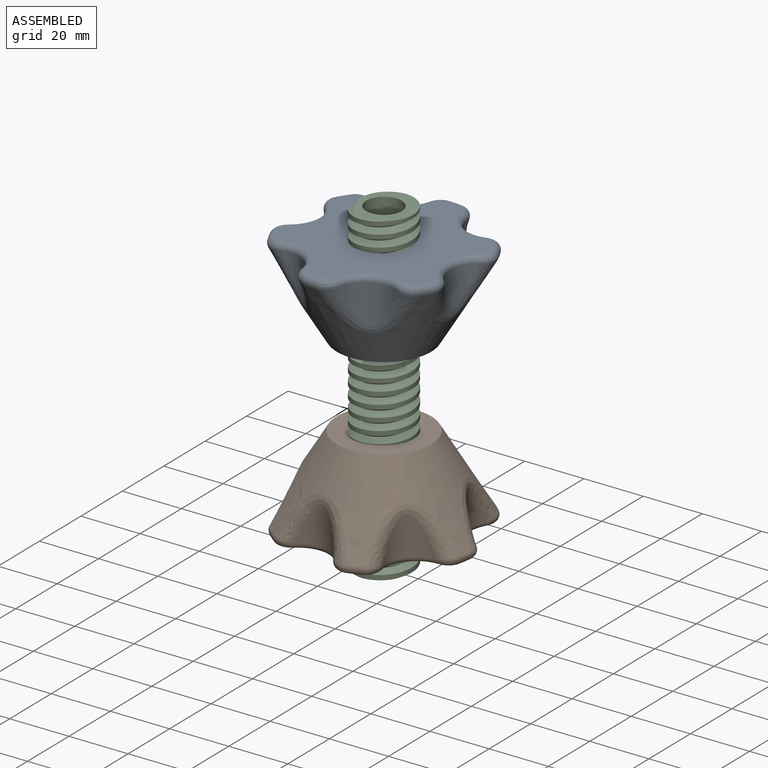
[diagram: assembled view]
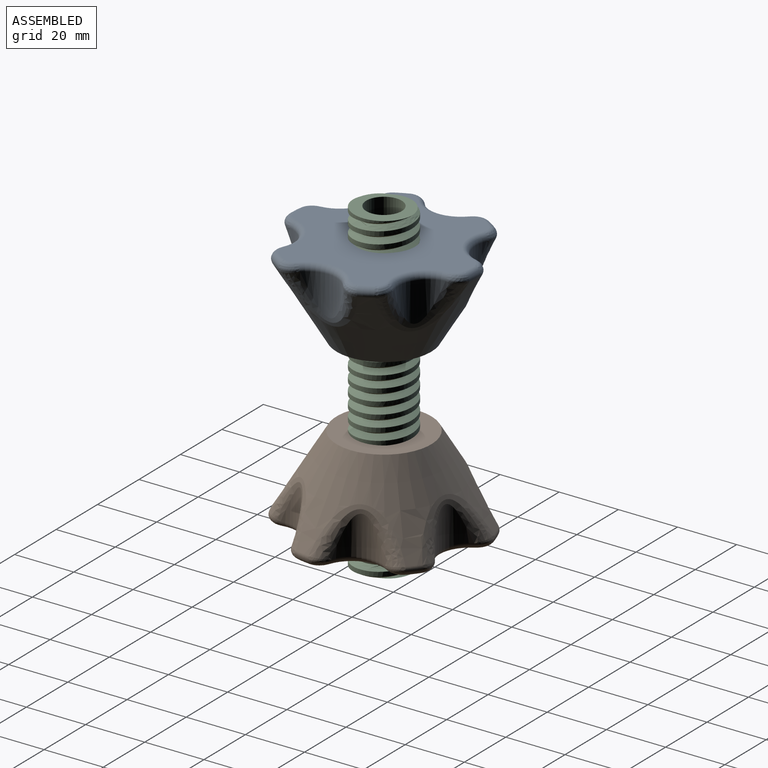
[diagram: assembled view, second angle]
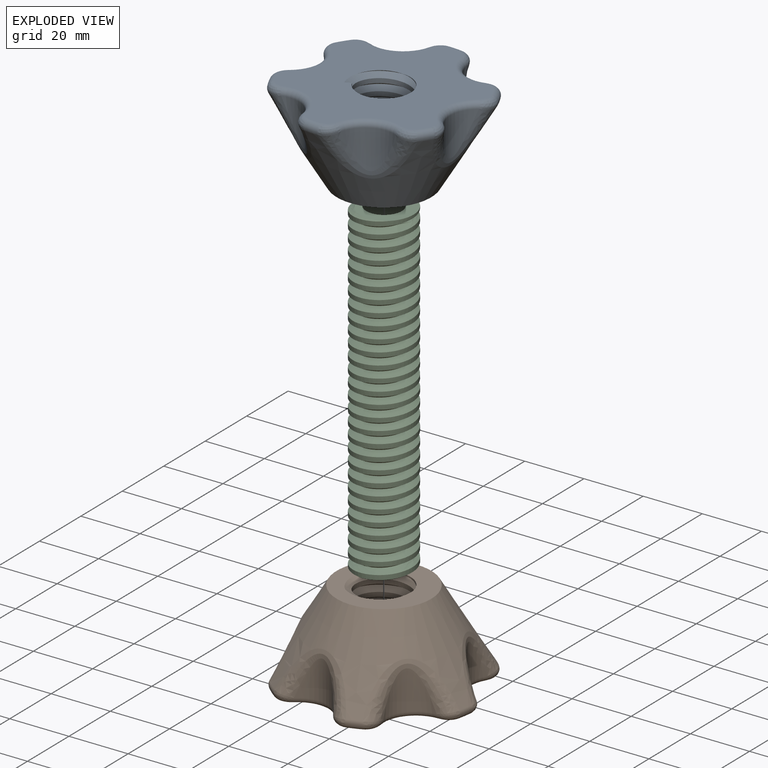
[diagram: exploded view]
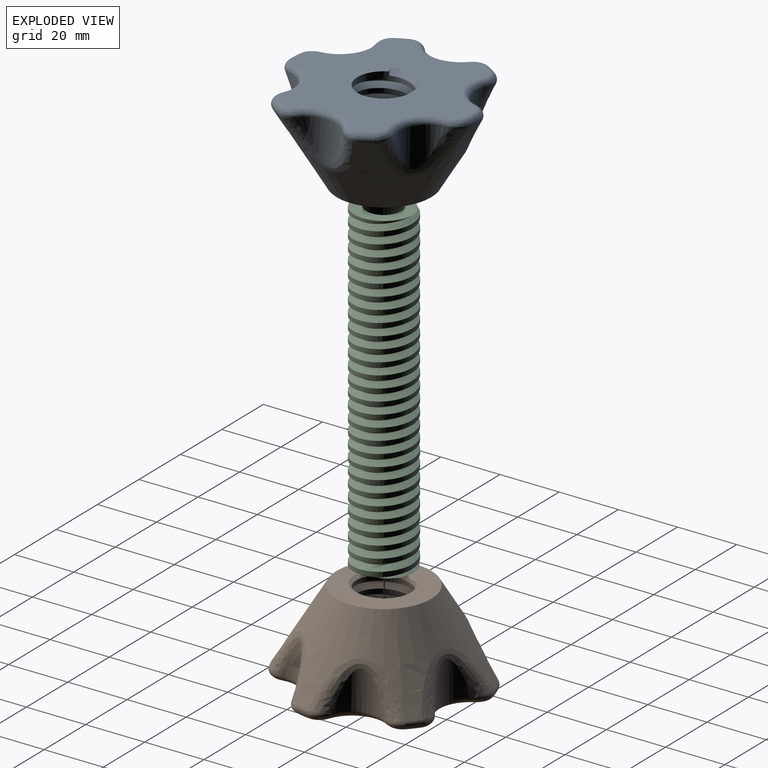
[diagram: exploded view, second angle]
ASSEMBLY  parts=3 mates=2
PART A: 43 faces, bbox 69x65.5x34.8 mm
  f0: cone r=34mm half-angle=31deg, axis (0,0,-1), area 2716.3mm2, adj f3,f13,f14,f15,f16,f17,f18,f22
  f1: plane 62.04x56.55mm, normal (0,0,-1), area 1858.3mm2, adj f2,f4,f6,f19,f20,f21,f22,f23
  f2: cylinder r=9mm len=30mm, axis (0,0,1), area 496.1mm2, adj f1,f3,f4,f5,f6
  f3: plane 33.1x33.1mm, normal (0,0,1), area 508.6mm2, adj f0,f2,f5,f6
  f4: plane 2.16x1.25mm, normal (0,1,0), area 1.3mm2, adj f1,f2,f5
  f5: bspline ~31.87x25.77mm, area 1168.9mm2, adj f2,f3,f4,f6
  f6: bspline ~33.2x25.77mm, area 1190.8mm2, adj f1,f2,f3,f5
  f7: cylinder r=10mm len=15.35mm, axis (0,0,-1), area 147.4mm2, adj f18,f35
  f8: cylinder r=10mm len=13.3mm, axis (0,0,-1), area 147.4mm2, adj f17,f27
  f9: cylinder r=10mm len=13.3mm, axis (0,0,-1), area 147.4mm2, adj f16,f19
  f10: cylinder r=10mm len=15.35mm, axis (0,0,-1), area 147.4mm2, adj f15,f26
  f11: cylinder r=10mm len=13.3mm, axis (0,0,-1), area 147.4mm2, adj f14,f34
  f12: cylinder r=10mm len=13.3mm, axis (0,0,-1), area 147.4mm2, adj f13,f42
  f13: bspline ~25.48x19.59mm, area 185.8mm2, adj f0,f12,f40,f41
  f14: bspline ~25.07x19.59mm, area 185.8mm2, adj f0,f11,f32,f36
  f15: bspline ~29.19x19.59mm, area 185.8mm2, adj f0,f10,f24,f28
  f16: bspline ~25.48x19.59mm, area 185.8mm2, adj f0,f9,f20,f21
  f17: bspline ~25.07x19.59mm, area 185.8mm2, adj f0,f8,f25,f29
  f18: bspline ~29.19x19.59mm, area 185.8mm2, adj f0,f7,f33,f37
  f19: torus R=12mm, axis (0,0,-1), area 59mm2, adj f1,f9,f20,f21
  f20: bspline ~9.66x4.48mm, area 23.9mm2, adj f1,f16,f19,f22
  f21: bspline ~7.72x6.08mm, area 23.9mm2, adj f1,f16,f19,f23
  f22: torus R=30.47mm, axis (0,0,-1), area 20.2mm2, adj f0,f1,f20,f24
  f23: torus R=30.47mm, axis (0,0,-1), area 20.2mm2, adj f0,f1,f21,f25
  f24: bspline ~9.08x5.55mm, area 23.9mm2, adj f1,f15,f22,f26
  f25: bspline ~7.72x6.08mm, area 23.9mm2, adj f1,f17,f23,f27
  f26: torus R=12mm, axis (0,0,-1), area 59mm2, adj f1,f10,f24,f28
  f27: torus R=12mm, axis (0,0,-1), area 59mm2, adj f1,f8,f25,f29
  f28: bspline ~9.08x5.57mm, area 23.9mm2, adj f1,f15,f26,f30
  f29: bspline ~9.66x4.48mm, area 23.9mm2, adj f1,f17,f27,f31
  f30: torus R=30.47mm, axis (0,0,-1), area 20.2mm2, adj f0,f1,f28,f32
  f31: torus R=30.47mm, axis (0,0,-1), area 20.2mm2, adj f0,f1,f29,f33
  f32: bspline ~9.66x4.48mm, area 23.9mm2, adj f1,f14,f30,f34
  f33: bspline ~9.08x5.57mm, area 23.9mm2, adj f1,f18,f31,f35
  f34: torus R=12mm, axis (0,0,-1), area 59mm2, adj f1,f11,f32,f36
  f35: torus R=12mm, axis (0,0,-1), area 59mm2, adj f1,f7,f33,f37
  f36: bspline ~7.72x6.08mm, area 23.9mm2, adj f1,f14,f34,f38
  f37: bspline ~9.08x5.55mm, area 23.9mm2, adj f1,f18,f35,f39
  f38: torus R=30.47mm, axis (0,0,-1), area 20.2mm2, adj f0,f1,f36,f40
  f39: torus R=30.47mm, axis (0,0,-1), area 20.2mm2, adj f0,f1,f37,f41
  f40: bspline ~7.72x6.08mm, area 23.9mm2, adj f1,f13,f38,f42
  f41: bspline ~9.66x4.48mm, area 23.9mm2, adj f1,f13,f39,f42
  f42: torus R=12mm, axis (0,0,-1), area 59mm2, adj f1,f12,f40,f41
PART B: same geometry as A
PART C: 6 faces, bbox 22.2x25.6x114.4 mm
  f0: cylinder r=6mm len=110mm, axis (0,0,-1), area 4146.9mm2, adj f2,f3
  f1: cylinder r=10mm len=110mm, axis (0,0,-1), area 3326.8mm2, adj f2,f3,f4,f5
  f2: plane 19.28x18.26mm, normal (0,0,1), area 161.8mm2, adj f0,f1,f4,f5
  f3: plane 19.28x18.26mm, normal (0,0,-1), area 161.8mm2, adj f0,f1,f4,f5
  f4: bspline ~113.87x25.59mm, area 3842.4mm2, adj f1,f2,f3,f5
  f5: bspline ~113.87x25.59mm, area 3846.8mm2, adj f1,f2,f3,f4
PLACE A rot(axis=(0.23,-0.97,0),180deg) t=(-25.85,-5.24,92.64)mm
PLACE B rot(axis=(0,0,1),50deg) t=(-25.85,-5.24,4.37)mm
PLACE C rot(axis=(0,0,1),1.5deg) t=(-25.85,-5.24,-7.09)mm
MATE cylindrical C.f0 <-> B.f0  axis (0,0,-1) through (-25.85,-5.24,-7.09)mm
MATE cylindrical C.f0 <-> A.f0  axis (0,0,1) through (-25.85,-5.24,102.91)mm
